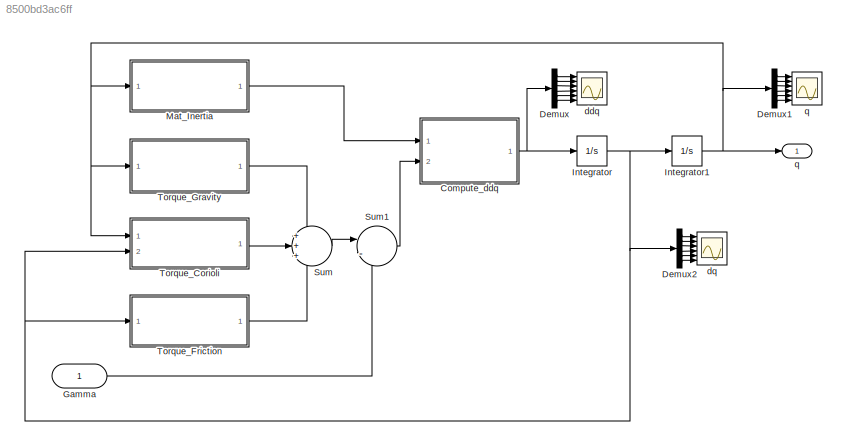
MODEL slx_8500bd3ac6ff
KIND model
CONFIG AbsTol = auto
CONFIG FixedStep = auto
CONFIG MaxStep = auto
CONFIG MinStep = auto
CONFIG RelTol = 1e-3
CONFIG SampleTimeConstraint = Unconstrained
CONFIG Solver = VariableStepAuto
CONFIG SolverMode = Auto
CONFIG SolverName = VariableStepAuto
CONFIG StartTime = 0.0
CONFIG StopTime = 10.0
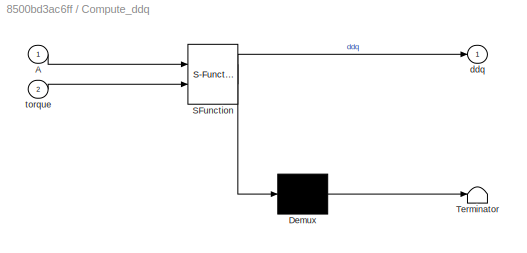
BLOCK [SubSystem] Compute_ddq 
  ErrorFcn = Stateflow.Translate.translate
  PermitHierarchicalResolution = ExplicitOnly
  Ports = [2, 1]
  RequestExecContextInheritance = off
  SFBlockType = MATLAB Function
  TreatAsAtomicUnit = on
  Variant = off
BLOCK [Demux] Compute_ddq / Demux 
  Outputs = 1
  Ports = [1, 1]
BLOCK [S-Function] Compute_ddq / SFunction 
  EnableBusSupport = on
  FunctionName = sf_sfun
  PortCounts = [2 2]
  Ports = [2, 2]
  SFunctionDeploymentMode = off
  Tag = Stateflow S-Function SimulinkQ17 5
BLOCK [Terminator] Compute_ddq / Terminator 
BLOCK [Inport] Compute_ddq /A
  IconDisplay = Port number
BLOCK [Outport] Compute_ddq /ddq
  IconDisplay = Port number
BLOCK [Inport] Compute_ddq /torque
  IconDisplay = Port number
  Port = 2
BLOCK [Demux] Demux
  DisplayOption = bar
  Outputs = 6
  Ports = [1, 6]
BLOCK [Demux] Demux1
  DisplayOption = bar
  Outputs = 6
  Ports = [1, 6]
BLOCK [Demux] Demux2
  DisplayOption = bar
  Outputs = 6
  Ports = [1, 6]
BLOCK [Inport] Gamma
  IconDisplay = Port number
BLOCK [Integrator] Integrator
  Ports = [1, 1]
BLOCK [Integrator] Integrator1
  InitialCondition = [-1.00, 0.00, -1.00, -1.00, -1.00, -1.00]
  Ports = [1, 1]
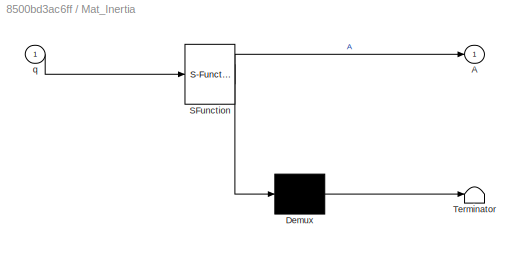
BLOCK [SubSystem] Mat_Inertia
  ErrorFcn = Stateflow.Translate.translate
  PermitHierarchicalResolution = ExplicitOnly
  Ports = [1, 1]
  RequestExecContextInheritance = off
  SFBlockType = MATLAB Function
  TreatAsAtomicUnit = on
  Variant = off
BLOCK [Demux] Mat_Inertia/ Demux 
  Outputs = 1
  Ports = [1, 1]
BLOCK [S-Function] Mat_Inertia/ SFunction 
  EnableBusSupport = on
  FunctionName = sf_sfun
  PortCounts = [1 2]
  Ports = [1, 2]
  SFunctionDeploymentMode = off
  Tag = Stateflow S-Function SimulinkQ17 3
BLOCK [Terminator] Mat_Inertia/ Terminator 
BLOCK [Outport] Mat_Inertia/A
  IconDisplay = Port number
BLOCK [Inport] Mat_Inertia/q
  IconDisplay = Port number
BLOCK [Sum] Sum
  IconShape = round
  InputSameDT = off
  Inputs = +++
  OutDataTypeStr = Inherit: Inherit via internal rule
  Ports = [3, 1]
  SaturateOnIntegerOverflow = off
BLOCK [Sum] Sum1
  IconShape = round
  InputSameDT = off
  Inputs = |-+
  OutDataTypeStr = Inherit: Inherit via internal rule
  Ports = [2, 1]
  SaturateOnIntegerOverflow = off
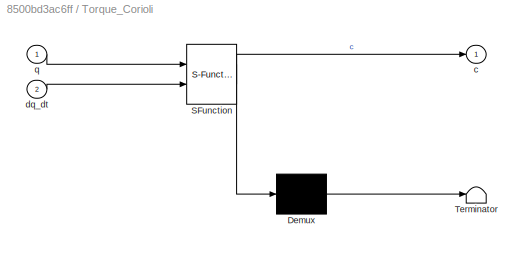
BLOCK [SubSystem] Torque_Corioli
  ErrorFcn = Stateflow.Translate.translate
  PermitHierarchicalResolution = ExplicitOnly
  Ports = [2, 1]
  RequestExecContextInheritance = off
  SFBlockType = MATLAB Function
  TreatAsAtomicUnit = on
  Variant = off
BLOCK [Demux] Torque_Corioli/ Demux 
  Outputs = 1
  Ports = [1, 1]
BLOCK [S-Function] Torque_Corioli/ SFunction 
  EnableBusSupport = on
  FunctionName = sf_sfun
  PortCounts = [2 2]
  Ports = [2, 2]
  SFunctionDeploymentMode = off
  Tag = Stateflow S-Function SimulinkQ17 4
BLOCK [Terminator] Torque_Corioli/ Terminator 
BLOCK [Outport] Torque_Corioli/c
  IconDisplay = Port number
BLOCK [Inport] Torque_Corioli/dq_dt
  IconDisplay = Port number
  Port = 2
BLOCK [Inport] Torque_Corioli/q
  IconDisplay = Port number
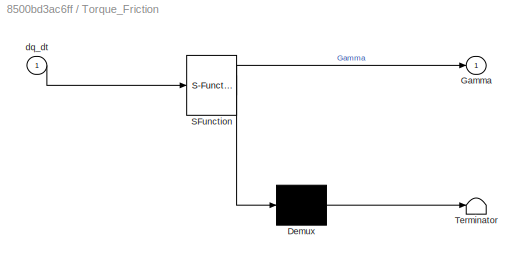
BLOCK [SubSystem] Torque_Friction
  ErrorFcn = Stateflow.Translate.translate
  PermitHierarchicalResolution = ExplicitOnly
  Ports = [1, 1]
  RequestExecContextInheritance = off
  SFBlockType = MATLAB Function
  TreatAsAtomicUnit = on
  Variant = off
BLOCK [Demux] Torque_Friction/ Demux 
  Outputs = 1
  Ports = [1, 1]
BLOCK [S-Function] Torque_Friction/ SFunction 
  EnableBusSupport = on
  FunctionName = sf_sfun
  PortCounts = [1 2]
  Ports = [1, 2]
  SFunctionDeploymentMode = off
  Tag = Stateflow S-Function SimulinkQ17 6
BLOCK [Terminator] Torque_Friction/ Terminator 
BLOCK [Outport] Torque_Friction/Gamma
  IconDisplay = Port number
BLOCK [Inport] Torque_Friction/dq_dt
  IconDisplay = Port number
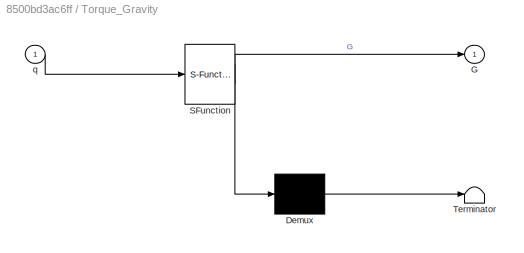
BLOCK [SubSystem] Torque_Gravity
  ErrorFcn = Stateflow.Translate.translate
  PermitHierarchicalResolution = ExplicitOnly
  Ports = [1, 1]
  RequestExecContextInheritance = off
  SFBlockType = MATLAB Function
  TreatAsAtomicUnit = on
  Variant = off
BLOCK [Demux] Torque_Gravity/ Demux 
  Outputs = 1
  Ports = [1, 1]
BLOCK [S-Function] Torque_Gravity/ SFunction 
  EnableBusSupport = on
  FunctionName = sf_sfun
  PortCounts = [1 2]
  Ports = [1, 2]
  SFunctionDeploymentMode = off
  Tag = Stateflow S-Function SimulinkQ17 7
BLOCK [Terminator] Torque_Gravity/ Terminator 
BLOCK [Outport] Torque_Gravity/G
  IconDisplay = Port number
BLOCK [Inport] Torque_Gravity/q
  IconDisplay = Port number
BLOCK [Scope] ddq
  NumInputPorts = 6
  Ports = [6]
  ScopeSpecificationString = Simulink.scopes.TimeScopeBlockCfg('CurrentConfiguration', extmgr.ConfigurationSet(extmgr.Configuration('Core','General UI',true),extmgr.Configuration('Core','Source UI',true),extmgr.Configuration('Sources','WiredSimulink',true,'DataLoggingLimitDataPoints',true,'DataLoggingSaveFormat','Array','DataLoggingDecimation','1','DataLoggingDecimateData',true,'DataLoggingVariableName','ScopeData1'),extmgr.C...<+4923ch>
BLOCK [Scope] dq 
  NumInputPorts = 6
  Ports = [6]
  ScopeSpecificationString = C++SS(StrPVP('SaveName','ScopeData2'))
BLOCK [Outport] q
  IconDisplay = Port number
BLOCK [Scope] q 
  NumInputPorts = 6
  Ports = [6]
  ScopeSpecificationString = C++SS(StrPVP('SaveName','ScopeData'))
NET Compute_ddq :1 -> Demux:1, Integrator:1
LINE Demux1:1 -> q :1
LINE Demux1:2 -> q :2
LINE Demux1:3 -> q :3
LINE Demux1:4 -> q :4
LINE Demux1:5 -> q :5
LINE Demux1:6 -> q :6
LINE Demux2:1 -> dq :1
LINE Demux2:2 -> dq :2
LINE Demux2:3 -> dq :3
LINE Demux2:4 -> dq :4
LINE Demux2:5 -> dq :5
LINE Demux2:6 -> dq :6
LINE Demux:1 -> ddq:1
LINE Demux:2 -> ddq:2
LINE Demux:3 -> ddq:3
LINE Demux:4 -> ddq:4
LINE Demux:5 -> ddq:5
LINE Demux:6 -> ddq:6
LINE Gamma:1 -> Sum1:2
NET Integrator1:1 -> Demux1:1, Mat_Inertia:1, Torque_Corioli:1, Torque_Gravity:1, q:1
NET Integrator:1 -> Demux2:1, Integrator1:1, Torque_Corioli:2, Torque_Friction:1
LINE Mat_Inertia:1 -> Compute_ddq :1
LINE Sum1:1 -> Compute_ddq :2
LINE Sum:1 -> Sum1:1
LINE Torque_Corioli:1 -> Sum:2
LINE Torque_Friction:1 -> Sum:3
LINE Torque_Gravity:1 -> Sum:1
note: NET lines group one-source signal fan-out (src -> all destinations, sorted); 1:1 wires keep LINE
CHART Mat_Inertia states=1 transitions=1
  STATE_LABEL 'eML_blk_kernel()'
  STATE_LABEL "SCRIPT:\nfunction A = ComputeMatIner(q)\n    % parameters\n    m=[15 10 1 7 1 0.5];   \n    x_G1 = 0; y_G1 = 0; z_G1 = -0.25;\n    x_G2 = 0.35; y_G2 = 0; z_G2 = 0;\n    x_G3 = 0; y_G3 = -0.1; z_G3 = 0;\n    x_G4 = 0; y_G4 = 0; z_G4 = 0;\n    x_G5 = 0; y_G5 = 0; z_G5 = 0;\n    x_G6 = 0; y_G6 = 0; z_G6 = 0;\n    x_G = [x_G1 x_G2 x_G3 x_G4 x_G5 x_G6]';\n    y_G = [y_G1 y_G2 y_G3 y_G4 y_G5 y_G6]';\n    z_G = [z_G...<+1744ch>"
CHART Torque_Corioli states=1 transitions=1
  STATE_LABEL 'eML_blk_kernel()'
  STATE_LABEL "SCRIPT:\nfunction c=ComputeCCTorques(q,dq_dt)\n\n    % Initialisation\n    c=zeros(size(q))';\n\n    % Parameters\n    m=[15 10 1 7 1 0.5]';\n    iI = zeros(3,3,length(q));\n    iI(:,:,1)=[0.80 0 0.05 ; 0 0.80 0 ; 0.05  0  0.10];\n    iI(:,:,2)=[0.10  0  0.10; 0  1.50 0 ; 0.10  0  1.50];\n    iI(:,:,3)=[0.05 0 0 ; 0 0.01 0 ; 0 0 0.05];\n    iI(:,:,4)=[0.50 0 0 ; 0 0.50 0 ; 0 0 0.05];\n    iI(:,:,5)=[0.01 0 0 ;...<+3608ch>"
CHART Compute_ddq
 states=1 transitions=1
  STATE_LABEL 'eML_blk_kernel()'
  STATE_LABEL 'SCRIPT:\nfunction ddq = fcn(A, torque)\n%#codegen\nddq = inv(A)*torque\n% ddq = A\\torque;\n'
CHART Torque_Friction states=1 transitions=1
  STATE_LABEL 'eML_blk_kernel()'
  STATE_LABEL 'SCRIPT:\nfunction Gamma = fcn(dq_dt)\n    % parameters\n    Fv = 10*ones(length(dq_dt), 1);\n    Gamma = diag(dq_dt)* Fv;\nend'
CHART Torque_Gravity states=1 transitions=1
  STATE_LABEL 'eML_blk_kernel()'
  STATE_LABEL 'SCRIPT:\nfunction G = ComputeGravTorque(q)\n\n    %Parameters\n    m=[15 10 1 7 1 0.5];\n    x_G1 = 0; y_G1 = 0; z_G1 = -0.25;\n    x_G2 = 0.35; y_G2 = 0; z_G2 = 0;\n    x_G3 = 0; y_G3 = -0.1; z_G3 = 0;\n    x_G4 = 0; y_G4 = 0; z_G4 = 0;\n    x_G5 = 0; y_G5 = 0; z_G5 = 0;\n    x_G6 = 0; y_G6 = 0; z_G6 = 0;\n    x_G = [x_G1 x_G2 x_G3 x_G4 x_G5 x_G6];\n    y_G = [y_G1 y_G2 y_G3 y_G4 y_G5 y_G6];\n    z_G = [z_G1 ...<+527ch>'
